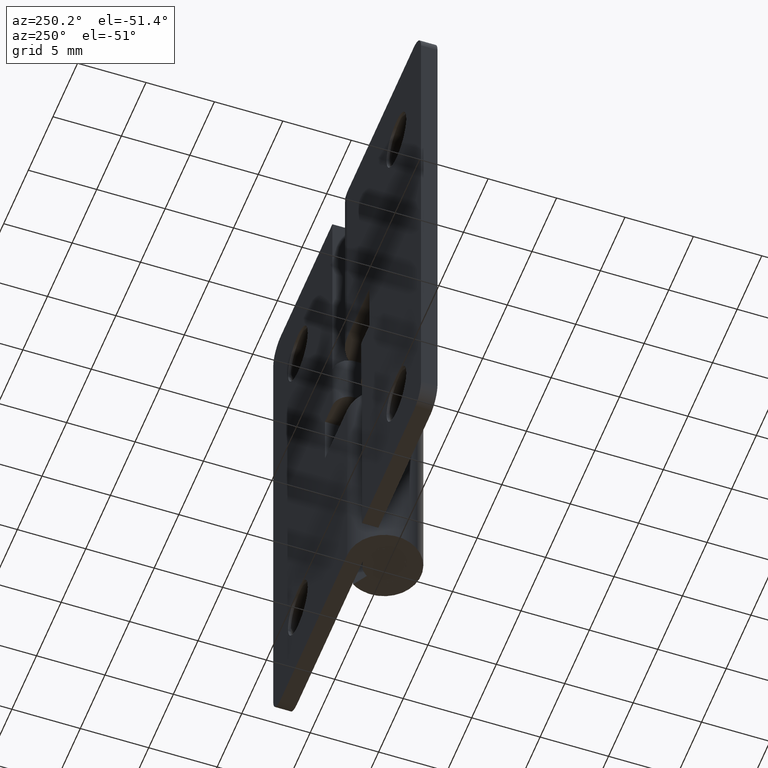
[diagram: clean part render]
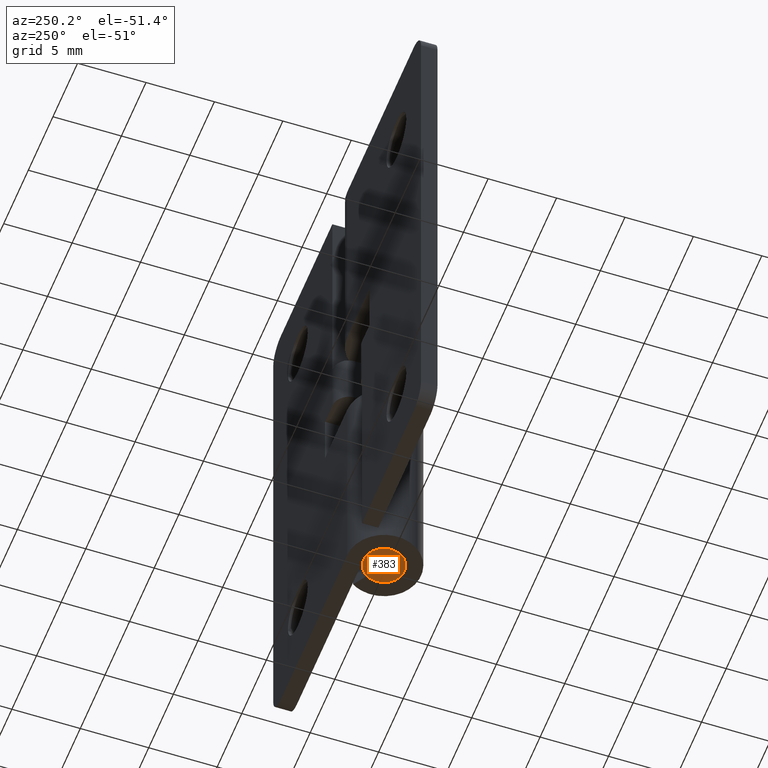
[diagram: same view with one face highlighted and labeled with its STEP entity id]
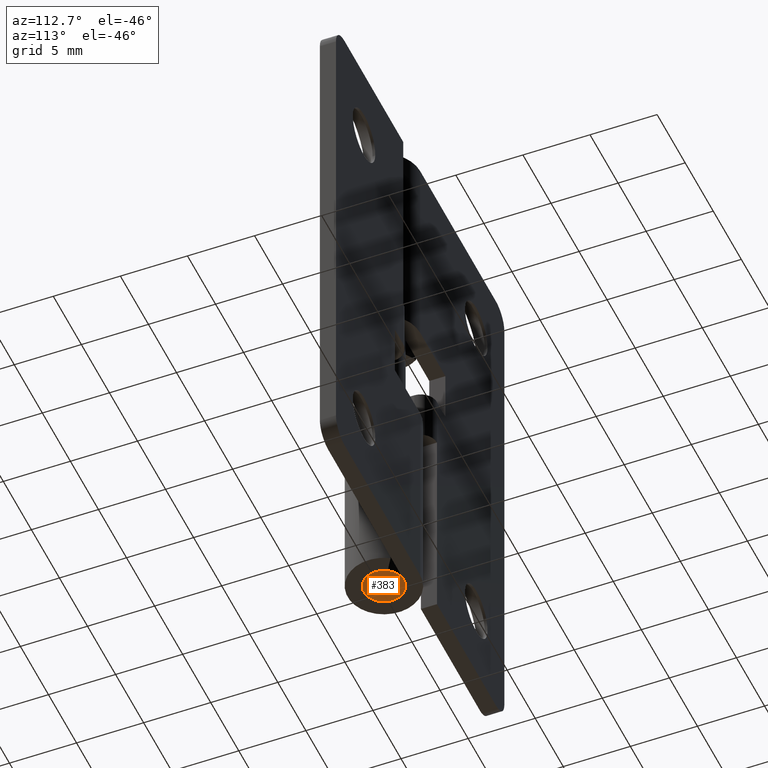
[diagram: same view with one face highlighted and labeled with its STEP entity id]
A machine part, auxiliary view. The second image highlights one B-rep face of the part: STEP entity #383.
A second angle (auxiliary view) of the same face is appended — the face is thin or edge-on in the first view.
In plain terms, the highlighted face is a freeform B-spline surface patch.
Its self-contained STEP definition (entity closure, byte-faithful):
#94=CARTESIAN_POINT('',(0.091574640779112,-1.497232141675586,-1.665335E-016));
#95=VERTEX_POINT('',#94);
#101=CARTESIAN_POINT('',(1.500030000000095,0.0,0.0));
#102=VERTEX_POINT('',#101);
#103=CARTESIAN_POINT('',(1.500030000000095,0.0,0.0));
#104=CARTESIAN_POINT('',(1.500030000000096,-1.411087321501679,0.0));
#105=CARTESIAN_POINT('',(0.091574640779112,-1.497232141675586,-1.665335E-016));
#113=(BOUNDED_CURVE()B_SPLINE_CURVE(2,(#103,#104,#105),.UNSPECIFIED.,.F.,.U.)B_SPLINE_CURVE_WITH_KNOTS((3,3),(0.500000000000000,0.739332962237213),.UNSPECIFIED.)CURVE()GEOMETRIC_REPRESENTATION_ITEM()RATIONAL_B_SPLINE_CURVE((1.0,0.719603993288737,0.976072041663010))REPRESENTATION_ITEM(''));
#114=EDGE_CURVE('',#102,#95,#113,.T.);
#116=CARTESIAN_POINT('',(1.404243452460401,0.527437510158670,-1.225041E-016));
#117=VERTEX_POINT('',#116);
#118=CARTESIAN_POINT('',(1.404243452460402,0.527437510158670,-1.225041E-016));
#119=CARTESIAN_POINT('',(1.500030000000095,0.272416527357102,0.0));
#120=CARTESIAN_POINT('',(1.500030000000095,0.0,0.0));
#128=(BOUNDED_CURVE()B_SPLINE_CURVE(2,(#118,#119,#120),.UNSPECIFIED.,.F.,.U.)B_SPLINE_CURVE_WITH_KNOTS((3,3),(0.440284170891700,0.500000000000000),.UNSPECIFIED.)CURVE()GEOMETRIC_REPRESENTATION_ITEM()RATIONAL_B_SPLINE_CURVE((0.893499554626943,0.930038554393424,1.0))REPRESENTATION_ITEM(''));
#129=EDGE_CURVE('',#117,#102,#128,.T.);
#179=CARTESIAN_POINT('',(-1.500030000000095,0.0,0.0));
#180=VERTEX_POINT('',#179);
#181=CARTESIAN_POINT('',(-1.500030000000095,0.0,0.0));
#182=CARTESIAN_POINT('',(-1.500030000000095,1.500030000000095,0.0));
#183=CARTESIAN_POINT('',(0.0,1.500030000000095,0.0));
#184=CARTESIAN_POINT('',(1.038935171778913,1.500030000000095,0.0));
#185=CARTESIAN_POINT('',(1.404243452460401,0.527437510158670,-1.225041E-016));
#193=(BOUNDED_CURVE()B_SPLINE_CURVE(2,(#181,#182,#183,#184,#185),.UNSPECIFIED.,.F.,.U.)B_SPLINE_CURVE_WITH_KNOTS((3,2,3),(0.0,0.250000000000000,0.440284170891700),.UNSPECIFIED.)CURVE()GEOMETRIC_REPRESENTATION_ITEM()RATIONAL_B_SPLINE_CURVE((1.0,0.707106781186548,1.0,0.777068226793123,0.893499554626944))REPRESENTATION_ITEM(''));
#194=EDGE_CURVE('',#180,#117,#193,.T.);
#196=CARTESIAN_POINT('',(0.091574640779112,-1.497232141675586,-1.665335E-016));
#197=CARTESIAN_POINT('',(0.045830061551478,-1.500030000000096,0.0));
#198=CARTESIAN_POINT('',(0.0,-1.500030000000095,0.0));
#199=CARTESIAN_POINT('',(-1.500030000000095,-1.500030000000095,0.0));
#200=CARTESIAN_POINT('',(-1.500030000000095,0.0,0.0));
#208=(BOUNDED_CURVE()B_SPLINE_CURVE(2,(#196,#197,#198,#199,#200),.UNSPECIFIED.,.F.,.U.)B_SPLINE_CURVE_WITH_KNOTS((3,2,3),(0.739332962237212,0.750000000000000,1.0),.UNSPECIFIED.)CURVE()GEOMETRIC_REPRESENTATION_ITEM()RATIONAL_B_SPLINE_CURVE((0.976072041663009,0.987502787897810,1.0,0.707106781186548,1.0))REPRESENTATION_ITEM(''));
#209=EDGE_CURVE('',#95,#180,#208,.T.);
#372=CARTESIAN_POINT('',(-1.649883047510240,-1.649846484521630,0.0));
#373=CARTESIAN_POINT('',(1.649883074332866,-1.649846484521630,0.0));
#374=CARTESIAN_POINT('',(-1.649883047510240,1.649854584954861,0.0));
#375=CARTESIAN_POINT('',(1.649883074332866,1.649854584954861,0.0));
#376=B_SPLINE_SURFACE_WITH_KNOTS('',1,1,((#372,#374),(#373,#375)),.UNSPECIFIED.,.F.,.F.,.U.,(2,2),(2,2),(0.0,3.299766121843105),(0.0,3.299701069476491),.UNSPECIFIED.);
#377=ORIENTED_EDGE('',*,*,#194,.T.);
#378=ORIENTED_EDGE('',*,*,#129,.T.);
#379=ORIENTED_EDGE('',*,*,#114,.T.);
#380=ORIENTED_EDGE('',*,*,#209,.T.);
#381=EDGE_LOOP('',(#377,#378,#379,#380));
#382=FACE_OUTER_BOUND('',#381,.T.);
#383=ADVANCED_FACE('',(#382),#376,.F.);